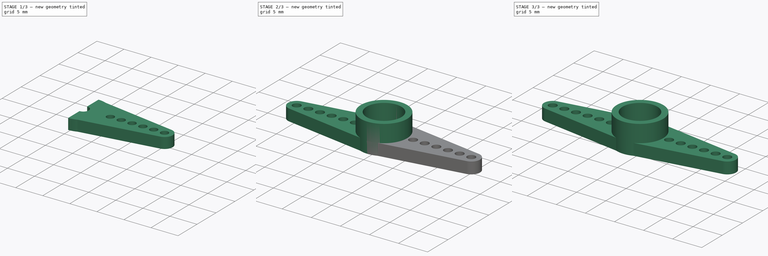
[diagram: build sequence overview — one tinted view per stage of 3, left to right]
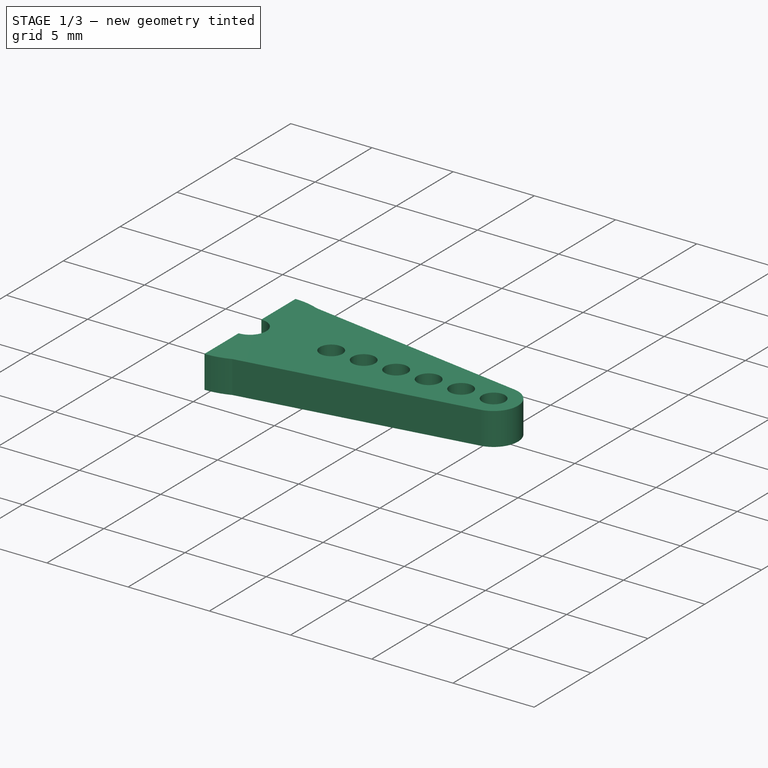
[diagram: stage 1 of 3 — iso view after this stage's code; geometry added in this stage tinted green]
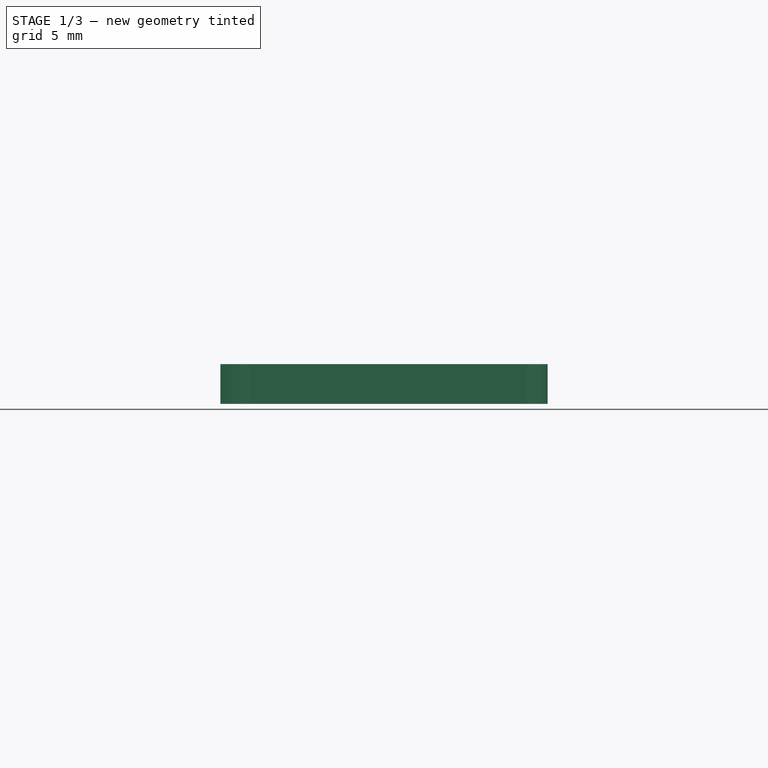
[diagram: stage 1 of 3 — front view after this stage's code; geometry added in this stage tinted green]
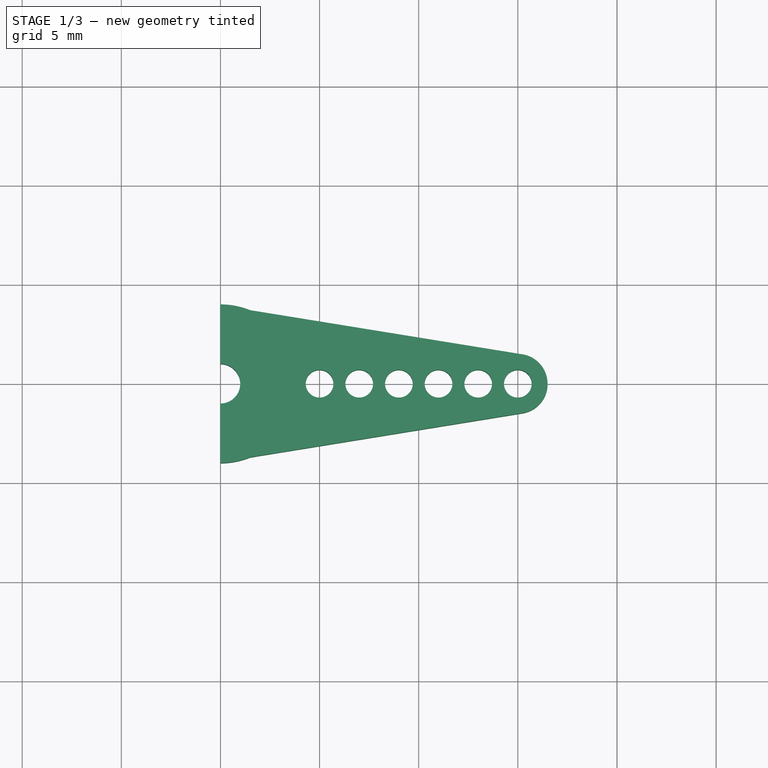
[diagram: stage 1 of 3 — top view after this stage's code; geometry added in this stage tinted green]
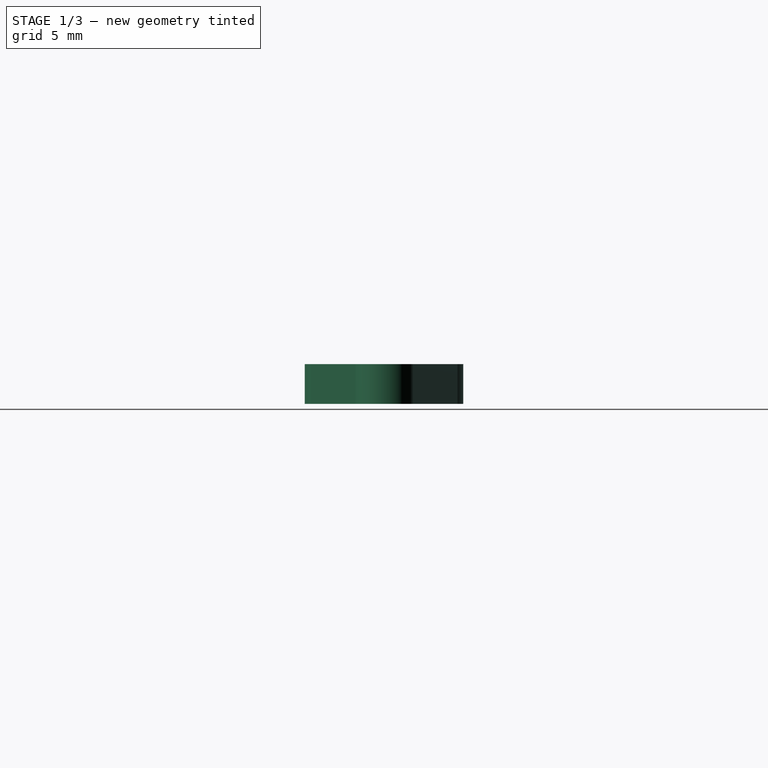
[diagram: stage 1 of 3 — right view after this stage's code; geometry added in this stage tinted green]
FCSTD DOCUMENT  (FreeCAD 0.16R5354 (Git))
Label: SG90-2-arms-horn
License: CreativeCommons Attribution-ShareAlike
LicenseURL: http://creativecommons.org/licenses/by-sa/4.0/
objects: Sketcher::SketchObject×3, PartDesign::Pad×1, Part::Extrusion×1, Part::Mirroring×1, Part::Fuse×1, Part::MultiFuse×1, PartDesign::Pocket×1, App::DocumentObjectGroup×1, Part::Feature×1
note: 12 computed .brp shape members not serialized (recipe doc carries the construction recipe); baked Part::Feature solids carry a one-line shape summary decoded from their .brp

FEATURE [Part::Extrusion] Extrude001
  Base = -> Sketch007
  Dir = (0,0,2)
  Solid = true
FEATURE [Part::Mirroring] Part__Mirroring  label="Extrude001 (Mirror #1)"
  Base = (0,0,0)
  Normal = (1,0,0)
  Source = -> Extrude001
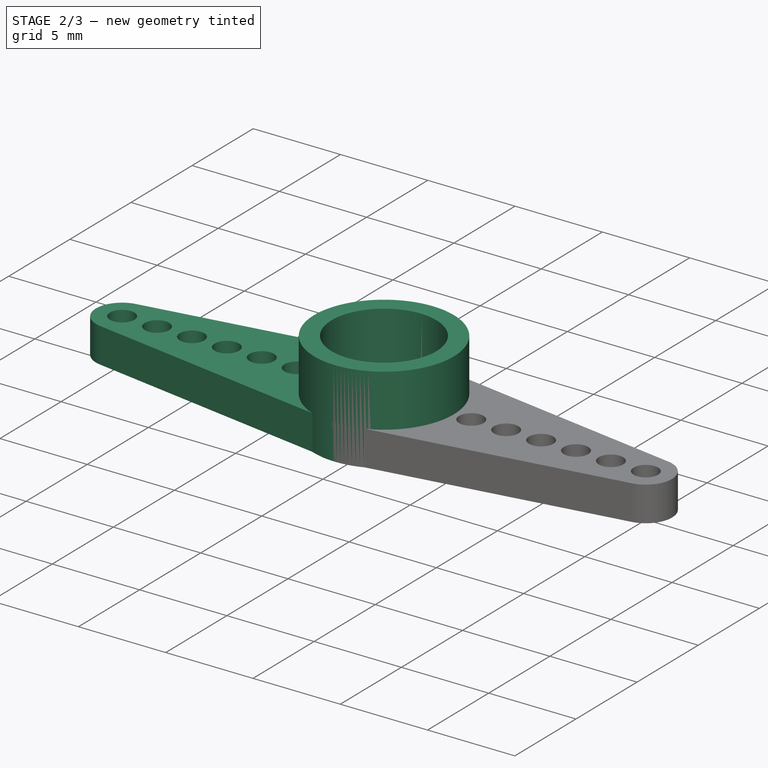
[diagram: stage 2 of 3 — iso view after this stage's code; geometry added in this stage tinted green]
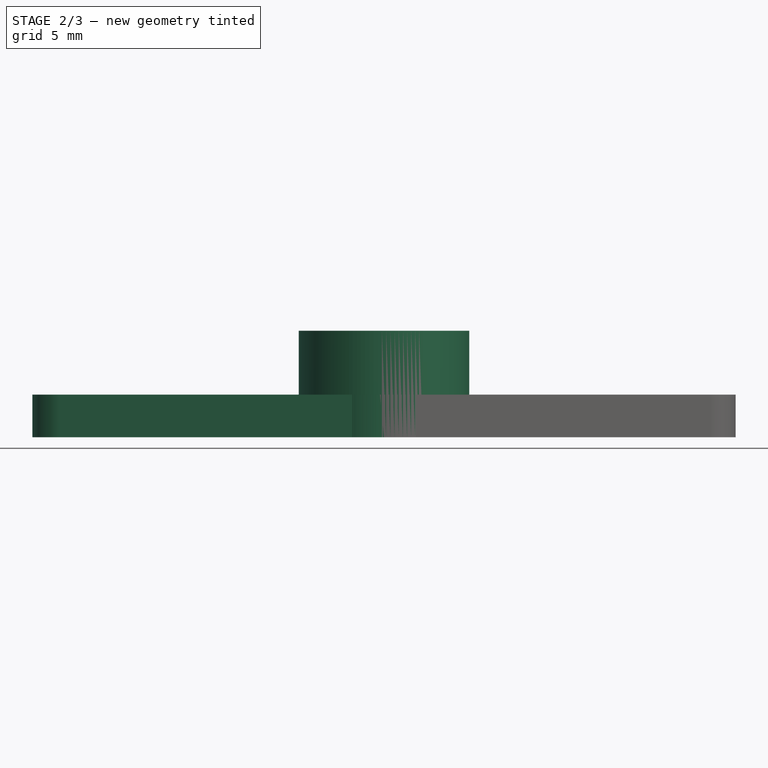
[diagram: stage 2 of 3 — front view after this stage's code; geometry added in this stage tinted green]
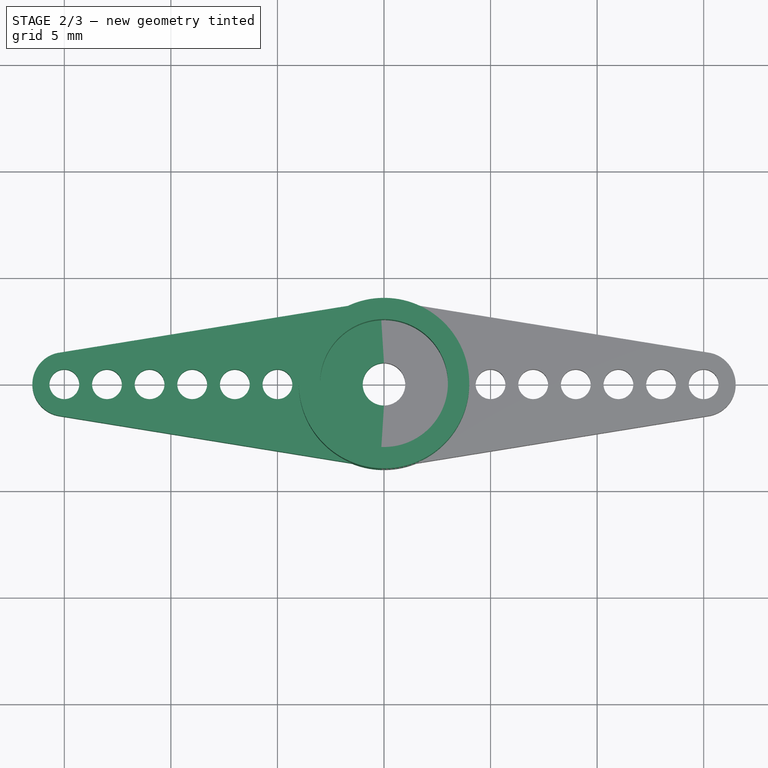
[diagram: stage 2 of 3 — top view after this stage's code; geometry added in this stage tinted green]
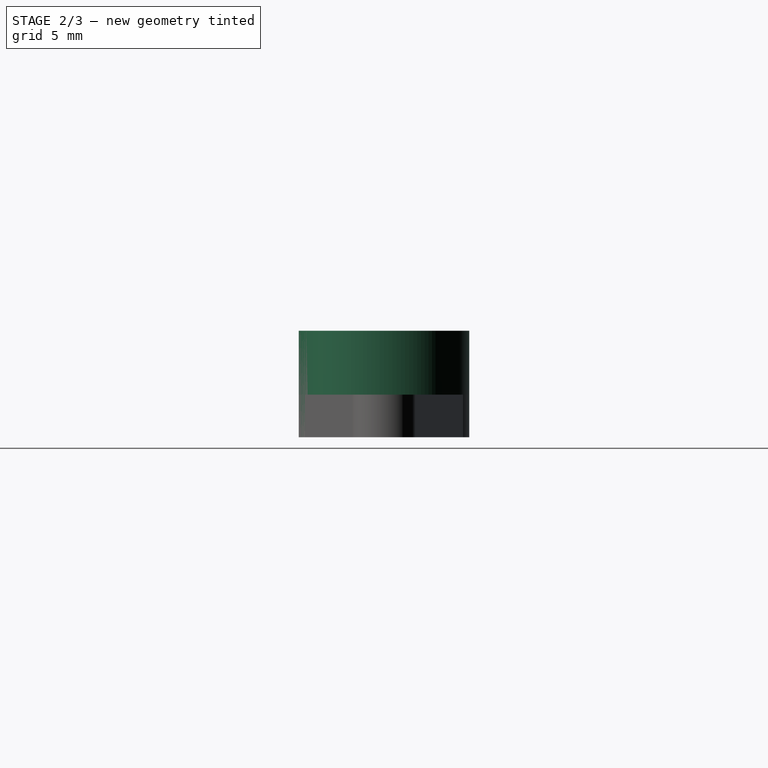
[diagram: stage 2 of 3 — right view after this stage's code; geometry added in this stage tinted green]
FEATURE [Sketcher::SketchObject] Sketch007
  sketch-geometry (15):
    g0: LineSegment StartX=-1.49771 StartY=-3.70902 StartZ=0 EndX=-15.2401 EndY=-1.48066 EndZ=0
    g1: ArcOfCircle CenterX=-15 CenterY=0 CenterZ=0 NormalX=0 NormalY=0 NormalZ=1 Radius=1.5 StartAngle=1.73155 EndAngle=4.55164
    g2: ArcOfCircle CenterX=0 CenterY=0 CenterZ=0 NormalX=0 NormalY=0 NormalZ=1 Radius=4 StartAngle=1.5708 EndAngle=1.95519
    g3: ArcOfCircle CenterX=0 CenterY=0 CenterZ=0 NormalX=0 NormalY=0 NormalZ=1 Radius=1 StartAngle=1.5708 EndAngle=4.71239
    g4: Circle CenterX=-15 CenterY=0 CenterZ=0 NormalX=0 NormalY=0 NormalZ=1 Radius=0.7
    g5: Circle CenterX=-13 CenterY=0 CenterZ=0 NormalX=0 NormalY=0 NormalZ=1 Radius=0.7
    g6: Circle CenterX=-11 CenterY=0 CenterZ=0 NormalX=0 NormalY=0 NormalZ=1 Radius=0.7
    g7: Circle CenterX=-9 CenterY=0 CenterZ=0 NormalX=0 NormalY=0 NormalZ=1 Radius=0.7
    g8: Circle CenterX=-7 CenterY=0 CenterZ=0 NormalX=0 NormalY=0 NormalZ=1 Radius=0.7
    g9: Circle CenterX=-5 CenterY=0 CenterZ=0 NormalX=0 NormalY=0 NormalZ=1 Radius=0.7
    g10: LineSegment [constr] StartX=-1.5 StartY=3.7081 StartZ=0 EndX=-1.5 EndY=-3.7081 EndZ=0
    g11: LineSegment StartX=0 StartY=4 StartZ=0 EndX=0 EndY=1 EndZ=0
    g12: ArcOfCircle CenterX=0 CenterY=0 CenterZ=0 NormalX=0 NormalY=0 NormalZ=1 Radius=4 StartAngle=4.32861 EndAngle=4.71239
    g13: LineSegment StartX=0 StartY=-1 StartZ=0 EndX=0 EndY=-4 EndZ=0
    g14: LineSegment StartX=-1.5 StartY=3.7081 StartZ=0 EndX=-15.2401 EndY=1.48066 EndZ=0
  constraints (41):
    c: Tangent(g0,g1) = 1.5708
    c: PointOnObject(g1,g-1)
    c: Coincident(g2,g-1)
    c: Radius(g2) = 4
    c: Radius(g3) = 1
    c: Coincident(g3,g-1)
    c: DistanceX(g-1,g1) = -15
    c: Coincident(g4,g1)
    c: PointOnObject(g5,g-1)
    c: PointOnObject(g6,g-1)
    c: PointOnObject(g7,g-1)
    c: PointOnObject(g8,g-1)
    c: Radius(g4) = 0.7
    c: Equal(g4,g5)
    c: Equal(g5,g6)
    c: Equal(g6,g7)
    c: Equal(g7,g8)
    c: Equal(g8,g9)
    c: DistanceX(g1,g5) = 2
    c: DistanceX(g5,g6) = 2
    c: DistanceX(g7,g6) = -2
    c: DistanceX(g8,g7) = -2
    c: DistanceX(g9,g8) = -2
    c: PointOnObject(g9,g-1)
    c: Vertical(g10)
    c: DistanceX(g-1,g10) = -1.5
    c: Vertical(g11)
    c: Equal(g2,g12)
    c: Coincident(g12,g0)
    c: Coincident(g2,g12)
    c: Coincident(g13,g12)
    c: Coincident(g11,g3)
    c: Coincident(g13,g3)
    c: Tangent(g11,g13)
    c: PointOnObject(g3,g-2)
    c: PointOnObject(g2,g10)
    c: Coincident(g14,g2)
    c: Coincident(g1,g14)
    c: Radius(g1) = 1.5
    c: Symmetric(g0,g1,g-1)
    c: Symmetric(g2,g0,g-1)
FEATURE [Sketcher::SketchObject] Sketch008
  sketch-geometry (2):
    g0: Circle CenterX=0 CenterY=0 CenterZ=0 NormalX=0 NormalY=0 NormalZ=1 Radius=3
    g1: Circle CenterX=0 CenterY=0 CenterZ=0 NormalX=0 NormalY=0 NormalZ=1 Radius=4
  constraints (4):
    c: Coincident(g0,g-1)
    c: Radius(g0) = 3
    c: Radius(g1) = 4
    c: Coincident(g1,g-1)
FEATURE [PartDesign::Pad] Pad005
  Length = 5
  Length2 = 100
  Sketch = -> Sketch008
  Type = 0
FEATURE [Part::Fuse] Fusion010
  Base = -> Extrude001
  Tool = -> Part__Mirroring
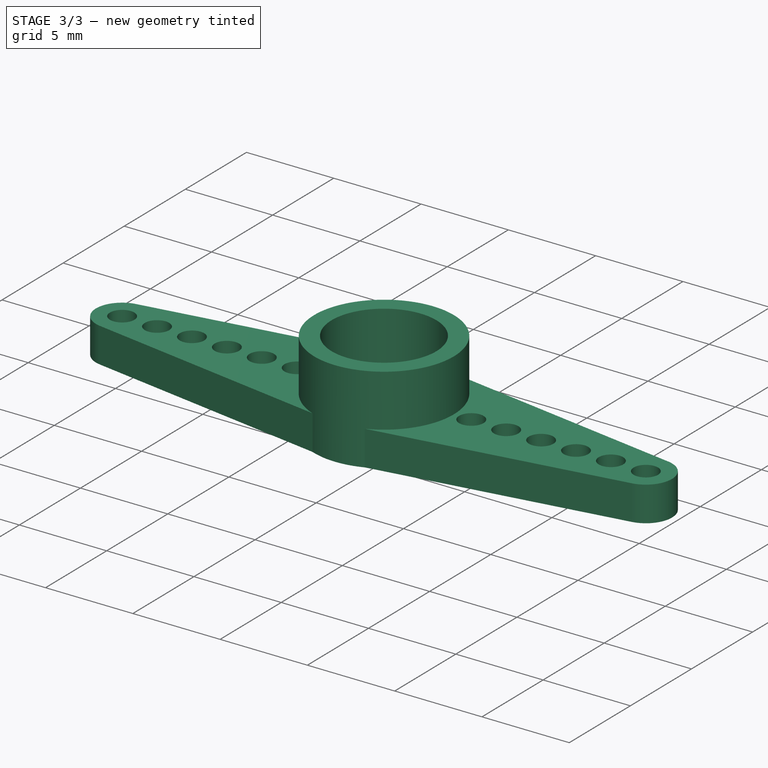
[diagram: stage 3 of 3 — iso view after this stage's code; geometry added in this stage tinted green]
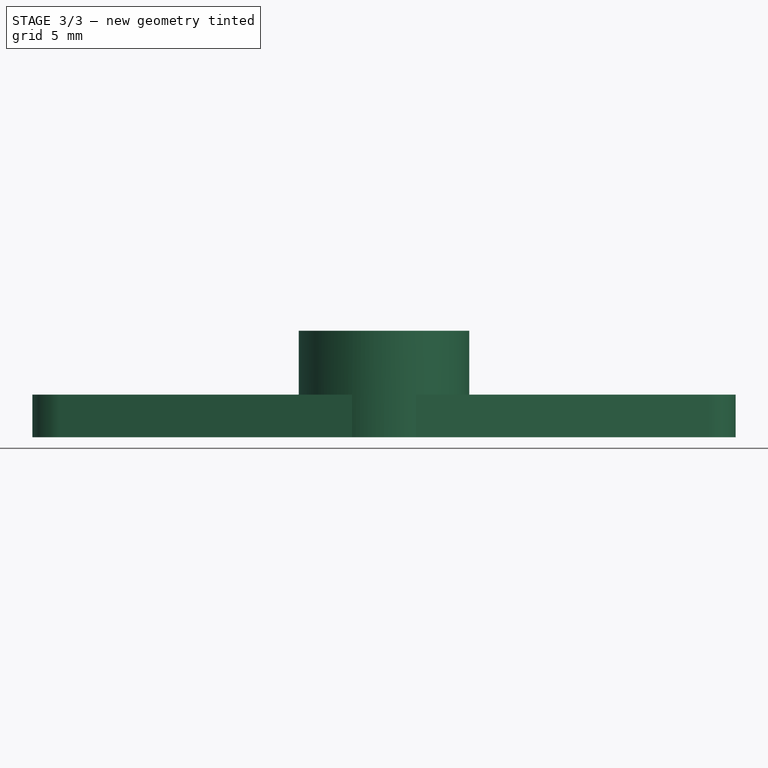
[diagram: stage 3 of 3 — front view after this stage's code; geometry added in this stage tinted green]
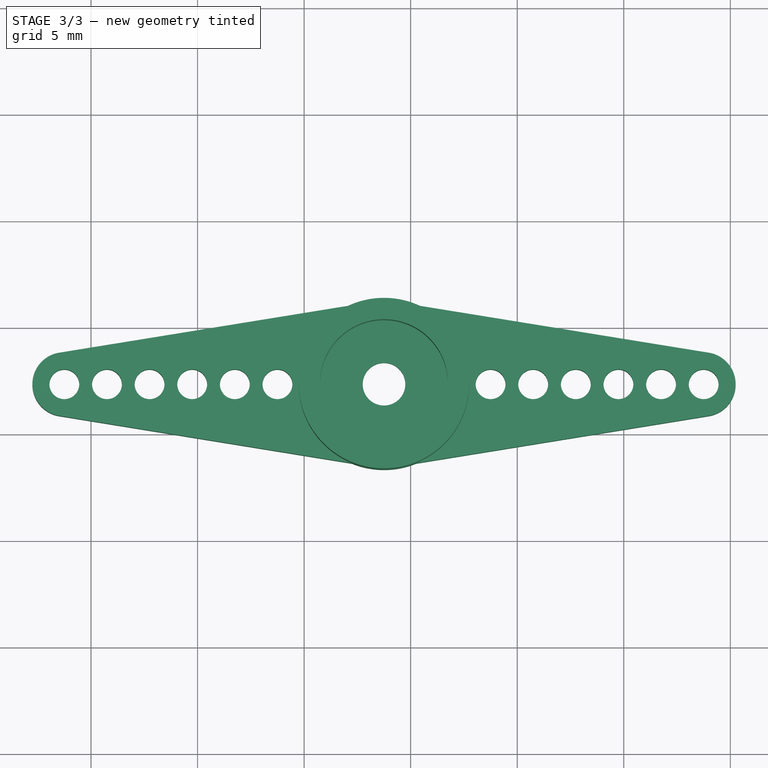
[diagram: stage 3 of 3 — top view after this stage's code; geometry added in this stage tinted green]
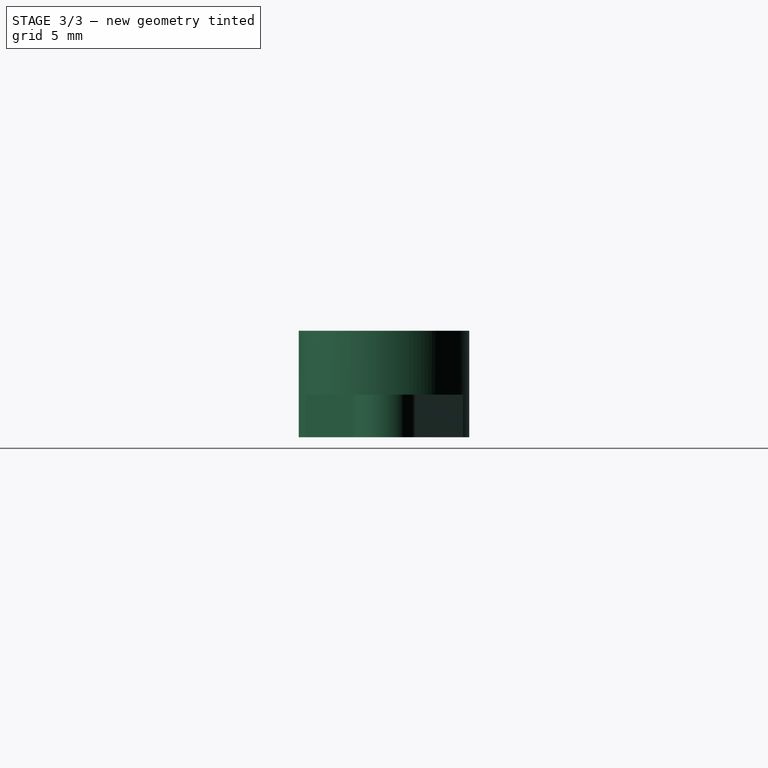
[diagram: stage 3 of 3 — right view after this stage's code; geometry added in this stage tinted green]
FEATURE [Part::MultiFuse] Fusion011
  Placement = pos=(28.7491,-12.6638,25.6722) rot=(0,0,1;0rad)
  Shapes = -> [Fusion010,Pad005]
FEATURE [Sketcher::SketchObject] Sketch009
  Placement = pos=(28.7491,-12.6638,25.6722) rot=(1,0,0;3.14159rad)
  Support = -> Fusion011 [Face11]
  sketch-geometry (1):
    g0: Circle CenterX=0 CenterY=0 CenterZ=0 NormalX=0 NormalY=0 NormalZ=1 Radius=2.5
  constraints (2):
    c: Coincident(g0,g-1)
    c: Radius(g0) = 2.5
FEATURE [PartDesign::Pocket] Pocket003  label="Pieza_completa002"
  Length = 1
  Placement = pos=(28.7491,-12.6638,25.6722) rot=(0,0,1;0rad)
  Sketch = -> Sketch009
  Type = 0
FEATURE [App::DocumentObjectGroup] Grupo002  label="Horn x 2"
  Group = -> [Fusion011,Pocket003]
FEATURE [Part::Feature] Pocket003001  label="Final-2-arms-horn"
  Placement = pos=(28.7491,-12.6638,25.6722) rot=(0,0,1;0rad)
  shape: bbox 33 x 8 x 5 mm, 28 faces (baked)
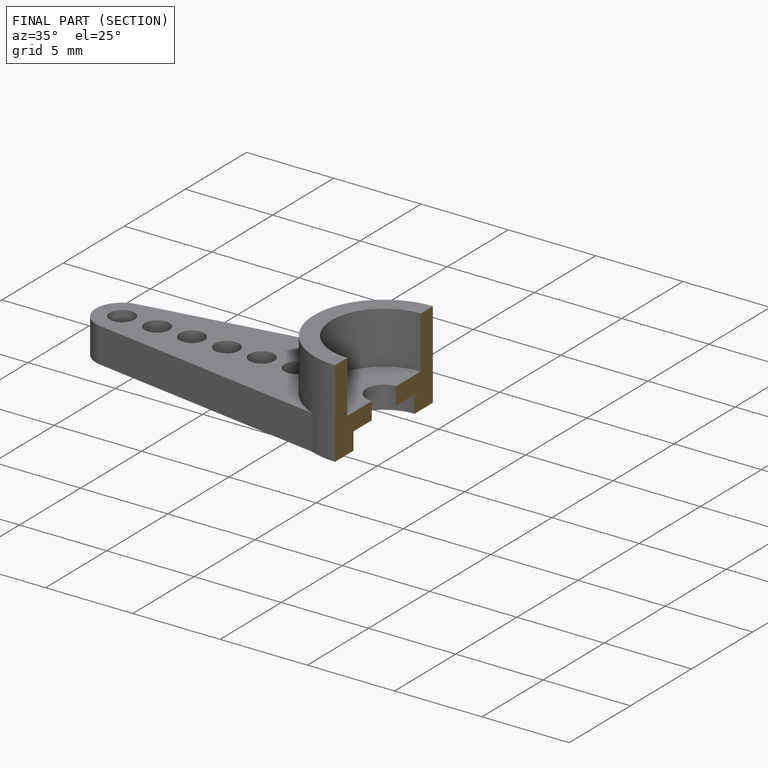
[diagram: finished part — half-section view (interior)]
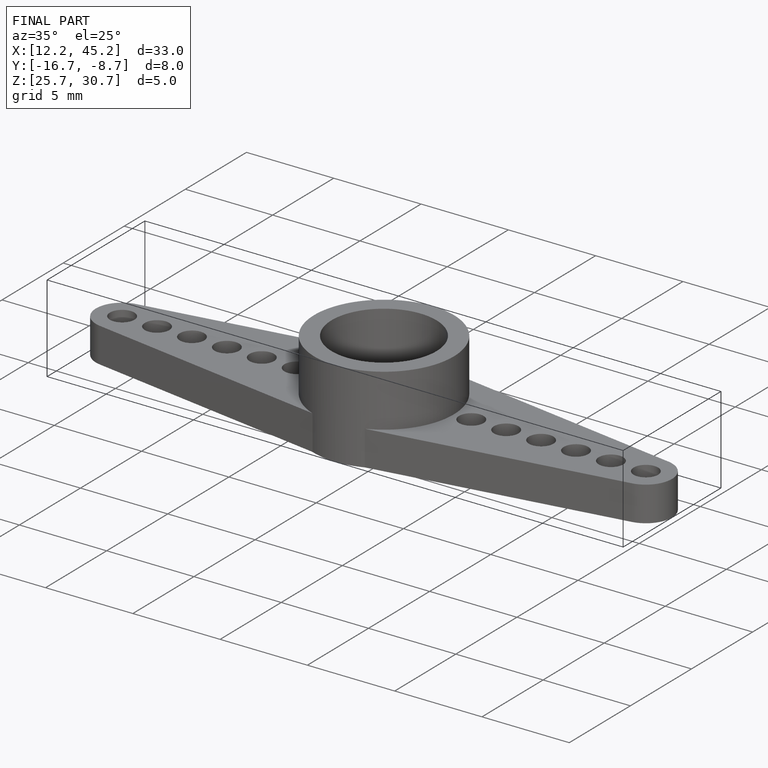
[diagram: finished part — iso view with bounding-box wireframe]
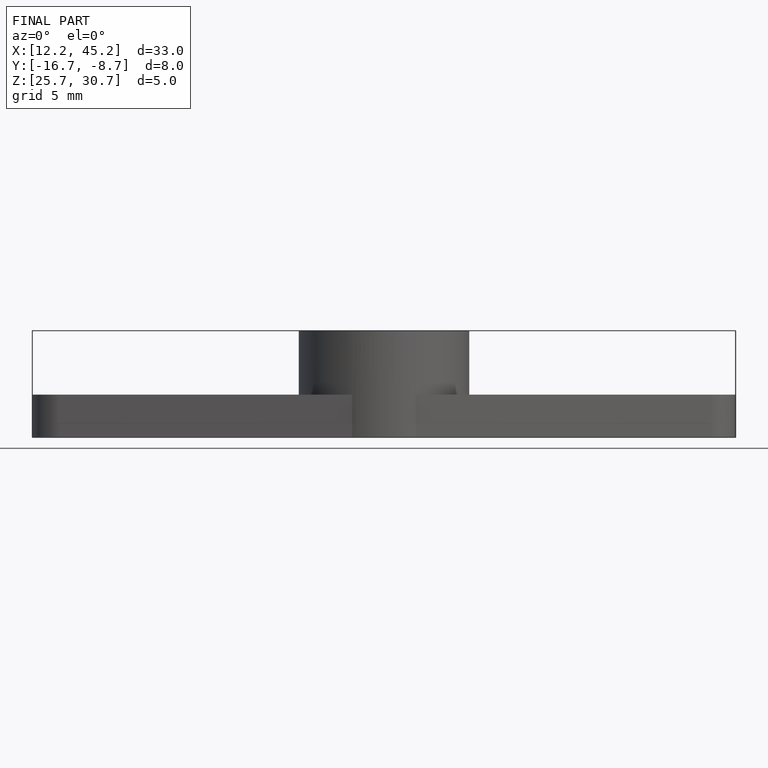
[diagram: finished part — front view with bounding-box wireframe]
